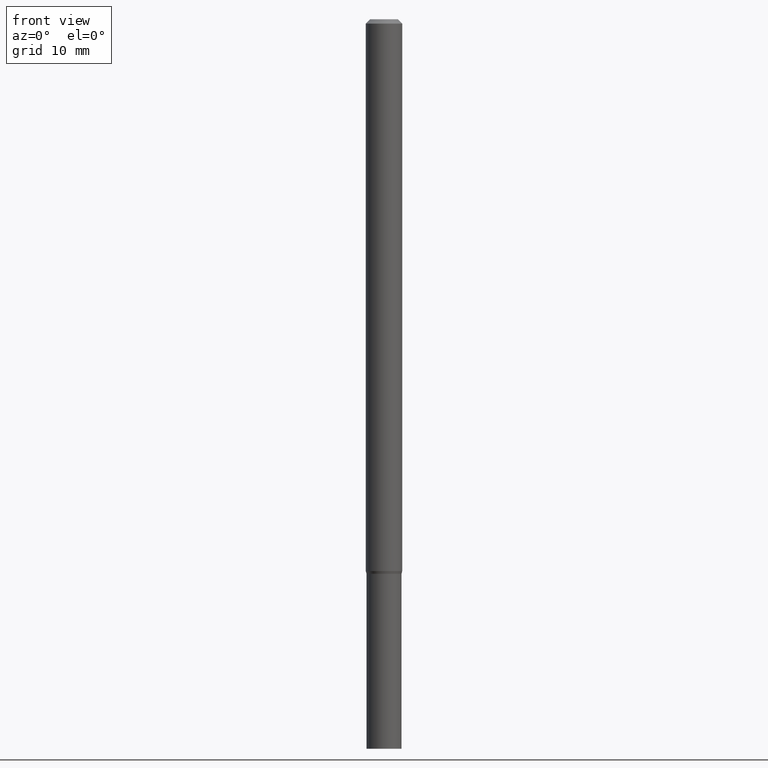
[diagram: clean part render]
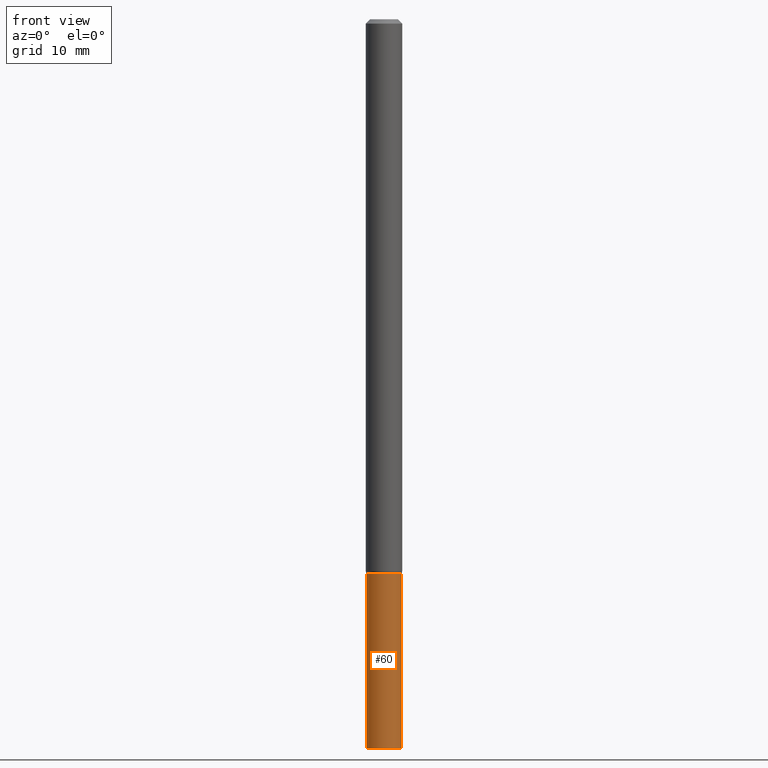
[diagram: same view with one face highlighted and labeled with its STEP entity id]
A machine part, front view. The second image highlights one B-rep face of the part: STEP entity #60.
In plain terms, the highlighted cylindrical surface (edge-blend (fillet) strip) has radius 1.524 mm, axis along (-0, 0, 1).
Its self-contained STEP definition (entity closure, byte-faithful):
#4 = CARTESIAN_POINT ( 'NONE',  ( 0.000000000000000000, 0.000000000000000000, 0.000000000000000000 ) ) ;
#18 = EDGE_LOOP ( 'NONE', ( #264, #68, #401, #331 ) ) ;
#22 = CARTESIAN_POINT ( 'NONE',  ( 0.05999999999999999778, -4.189777606611760421E-16, 2.925706065477561756E-30 ) ) ;
#41 = FACE_OUTER_BOUND ( 'NONE', #18, .T. ) ;
#45 = VERTEX_POINT ( 'NONE', #369 ) ;
#60 = ADVANCED_FACE ( 'NONE', ( #41 ), #365, .T. ) ;
#66 = CARTESIAN_POINT ( 'NONE',  ( 4.646390731751759982E-29, -6.633814543801977041E-15, -1.900000000000000133 ) ) ;
#68 = ORIENTED_EDGE ( 'NONE', *, *, #363, .T. ) ;
#91 = CARTESIAN_POINT ( 'NONE',  ( -0.05999999999999999778, 4.263256414560600957E-16, -2.951361054152943413E-30 ) ) ;
#114 = EDGE_CURVE ( 'NONE', #126, #223, #222, .T. ) ;
#126 = VERTEX_POINT ( 'NONE', #307 ) ;
#130 = DIRECTION ( 'NONE',  ( 1.000000000000000000, -6.982962677686268288E-15, 0.000000000000000000 ) ) ;
#144 = DIRECTION ( 'NONE',  ( -2.445468806185136597E-29, 3.491481338843145583E-15, 1.000000000000000000 ) ) ;
#159 = CIRCLE ( 'NONE', #428, 0.05999999999999999778 ) ;
#164 = DIRECTION ( 'NONE',  ( -2.445468806185136877E-29, 3.491481338843145188E-15, 1.000000000000000000 ) ) ;
#200 = DIRECTION ( 'NONE',  ( -2.445468806185136597E-29, 3.491481338843145583E-15, 1.000000000000000000 ) ) ;
#206 = DIRECTION ( 'NONE',  ( -2.445468806185136597E-29, 3.491481338843145583E-15, 1.000000000000000000 ) ) ;
#214 = AXIS2_PLACEMENT_3D ( 'NONE', #356, #200, #430 ) ;
#222 = LINE ( 'NONE', #22, #238 ) ;
#223 = VERTEX_POINT ( 'NONE', #336 ) ;
#238 = VECTOR ( 'NONE', #164, 39.37007874015748143 ) ;
#264 = ORIENTED_EDGE ( 'NONE', *, *, #346, .F. ) ;
#287 = DIRECTION ( 'NONE',  ( 1.000000000000000000, -6.982962677686267499E-15, 4.876176775795936353E-29 ) ) ;
#307 = CARTESIAN_POINT ( 'NONE',  ( 0.05999999999999999778, -9.147681107769039999E-15, -2.500000000000000000 ) ) ;
#312 = DIRECTION ( 'NONE',  ( -2.445468806185136877E-29, 3.491481338843145188E-15, 1.000000000000000000 ) ) ;
#331 = ORIENTED_EDGE ( 'NONE', *, *, #361, .F. ) ;
#336 = CARTESIAN_POINT ( 'NONE',  ( 0.05999999999999999778, -7.052792304463153675E-15, -1.900000000000000133 ) ) ;
#346 = EDGE_CURVE ( 'NONE', #45, #436, #358, .T. ) ;
#356 = CARTESIAN_POINT ( 'NONE',  ( 6.113672015462842613E-29, -8.728703347107864943E-15, -2.500000000000000000 ) ) ;
#358 = LINE ( 'NONE', #91, #360 ) ;
#360 = VECTOR ( 'NONE', #312, 39.37007874015748143 ) ;
#361 = EDGE_CURVE ( 'NONE', #436, #223, #159, .T. ) ;
#363 = EDGE_CURVE ( 'NONE', #45, #126, #388, .T. ) ;
#365 = CYLINDRICAL_SURFACE ( 'NONE', #446, 0.05999999999999999778 ) ;
#369 = CARTESIAN_POINT ( 'NONE',  ( -0.05999999999999999778, -7.254933303998859713E-15, -2.500000000000000000 ) ) ;
#382 = CARTESIAN_POINT ( 'NONE',  ( -0.05999999999999999778, -7.254933303998859713E-15, -1.900000000000000133 ) ) ;
#388 = CIRCLE ( 'NONE', #214, 0.05999999999999999778 ) ;
#401 = ORIENTED_EDGE ( 'NONE', *, *, #114, .T. ) ;
#428 = AXIS2_PLACEMENT_3D ( 'NONE', #66, #206, #130 ) ;
#430 = DIRECTION ( 'NONE',  ( 1.000000000000000000, -6.982962677686251722E-15, 0.000000000000000000 ) ) ;
#436 = VERTEX_POINT ( 'NONE', #382 ) ;
#446 = AXIS2_PLACEMENT_3D ( 'NONE', #4, #144, #287 ) ;